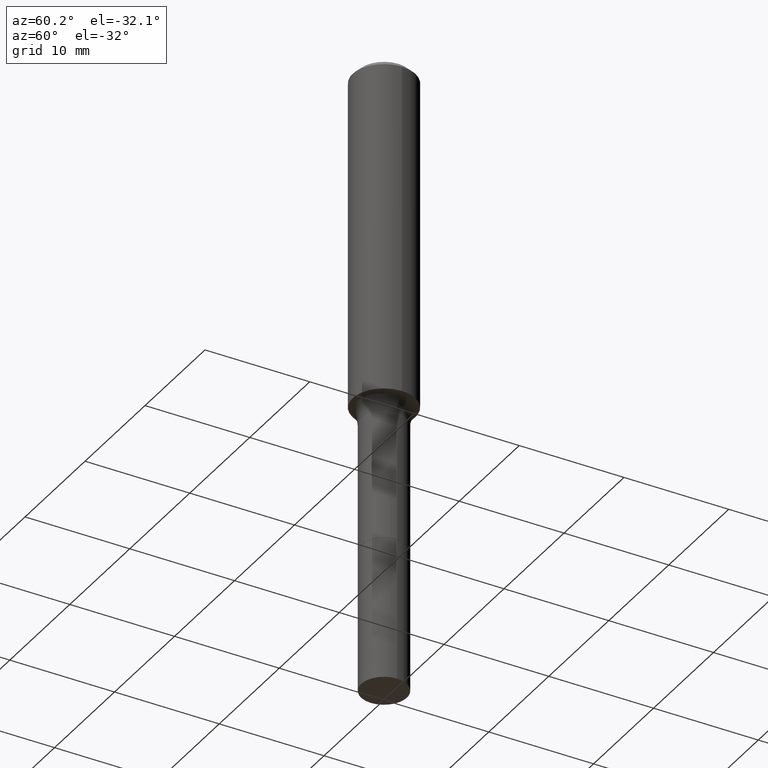
[diagram: clean part render]
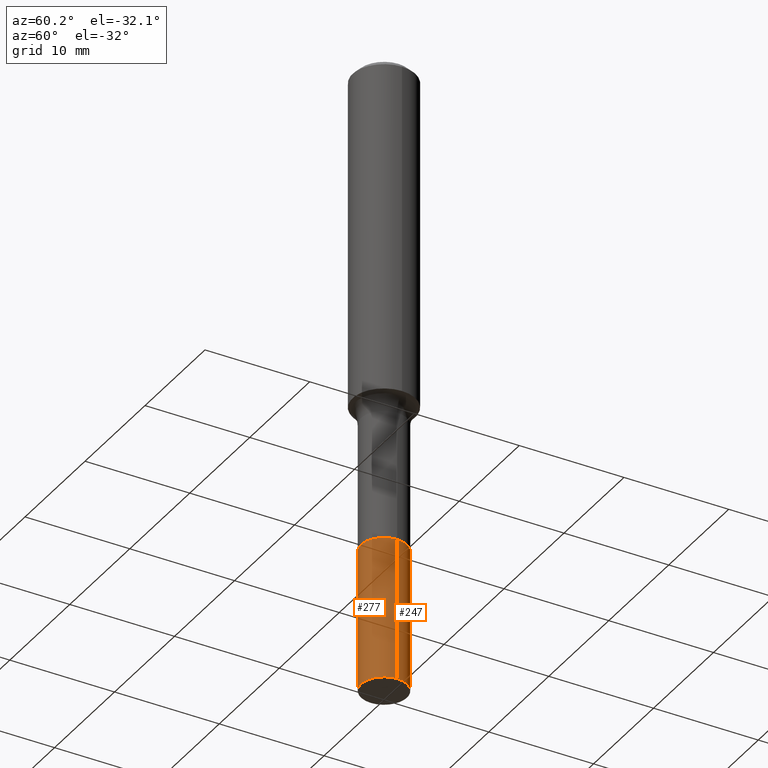
[diagram: same view with one multi-face feature highlighted, each face labeled with its STEP entity id]
A machine part, auxiliary view. The highlighted faces form ONE feature: a constant-radius fillet chain: 2 tangent blend faces with common blend radius 2.1831 mm. The faces share edges in the B-rep.
Their STEP definitions:
[1] entity #247 (Cylinder):
#5 = CIRCLE ( 'NONE', #360, 0.08594999999999998475 ) ;
#12 = CARTESIAN_POINT ( 'NONE',  ( -0.08595000000000005413, -5.765431739609545378E-15, -1.826200000000000045 ) ) ;
#65 = CARTESIAN_POINT ( 'NONE',  ( 0.08595000000000012352, -8.847762860762413853E-15, -2.362200000000000077 ) ) ;
#74 = AXIS2_PLACEMENT_3D ( 'NONE', #377, #173, #419 ) ;
#90 = CIRCLE ( 'NONE', #74, 0.08595000000000012352 ) ;
#104 = VECTOR ( 'NONE', #334, 39.37007874015748143 ) ;
#109 = EDGE_CURVE ( 'NONE', #309, #155, #489, .T. ) ;
#155 = VERTEX_POINT ( 'NONE', #321 ) ;
#173 = DIRECTION ( 'NONE',  ( -2.445468806185136597E-29, 3.491481338843145583E-15, 1.000000000000000000 ) ) ;
#177 = DIRECTION ( 'NONE',  ( -2.445468806185136597E-29, 3.491481338843145583E-15, 1.000000000000000000 ) ) ;
#205 = VECTOR ( 'NONE', #488, 39.37007874015748143 ) ;
#214 = EDGE_CURVE ( 'NONE', #309, #481, #90, .T. ) ;
#246 = CYLINDRICAL_SURFACE ( 'NONE', #423, 0.08595000000000005413 ) ;
#247 = ADVANCED_FACE ( 'NONE', ( #299 ), #246, .T. ) ;
#259 = LINE ( 'NONE', #12, #104 ) ;
#285 = EDGE_CURVE ( 'NONE', #481, #378, #259, .T. ) ;
#299 = FACE_OUTER_BOUND ( 'NONE', #503, .T. ) ;
#309 = VERTEX_POINT ( 'NONE', #65 ) ;
#321 = CARTESIAN_POINT ( 'NONE',  ( 0.08594999999999998475, -6.976328863142486296E-15, -1.826200000000000045 ) ) ;
#331 = ORIENTED_EDGE ( 'NONE', *, *, #285, .T. ) ;
#334 = DIRECTION ( 'NONE',  ( -2.445468806185136877E-29, 3.491481338843145188E-15, 1.000000000000000000 ) ) ;
#335 = DIRECTION ( 'NONE',  ( 1.000000000000000000, -6.982962677686268288E-15, 0.000000000000000000 ) ) ;
#343 = CARTESIAN_POINT ( 'NONE',  ( -0.08594999999999998475, -6.701148738419508368E-15, -1.826200000000000045 ) ) ;
#350 = ORIENTED_EDGE ( 'NONE', *, *, #379, .F. ) ;
#360 = AXIS2_PLACEMENT_3D ( 'NONE', #510, #472, #387 ) ;
#364 = CARTESIAN_POINT ( 'NONE',  ( 0.08595000000000005413, -6.976328863142487085E-15, -1.826200000000000045 ) ) ;
#377 = CARTESIAN_POINT ( 'NONE',  ( 5.776686413970529753E-29, -8.247577218615279626E-15, -2.362200000000000077 ) ) ;
#378 = VERTEX_POINT ( 'NONE', #343 ) ;
#379 = EDGE_CURVE ( 'NONE', #155, #378, #5, .T. ) ;
#387 = DIRECTION ( 'NONE',  ( 1.000000000000000000, -6.982962677686261977E-15, 0.000000000000000000 ) ) ;
#419 = DIRECTION ( 'NONE',  ( 1.000000000000000000, -6.982962677686262766E-15, 0.000000000000000000 ) ) ;
#423 = AXIS2_PLACEMENT_3D ( 'NONE', #457, #177, #335 ) ;
#427 = ORIENTED_EDGE ( 'NONE', *, *, #214, .T. ) ;
#450 = CARTESIAN_POINT ( 'NONE',  ( -0.08595000000000012352, -6.701148738419506790E-15, -2.362200000000000077 ) ) ;
#457 = CARTESIAN_POINT ( 'NONE',  ( 4.465915133855296004E-29, -6.376143220995352070E-15, -1.826200000000000045 ) ) ;
#472 = DIRECTION ( 'NONE',  ( -2.445468806185136597E-29, 3.491481338843145583E-15, 1.000000000000000000 ) ) ;
#475 = ORIENTED_EDGE ( 'NONE', *, *, #109, .F. ) ;
#481 = VERTEX_POINT ( 'NONE', #450 ) ;
#488 = DIRECTION ( 'NONE',  ( -2.445468806185136877E-29, 3.491481338843145188E-15, 1.000000000000000000 ) ) ;
#489 = LINE ( 'NONE', #364, #205 ) ;
#503 = EDGE_LOOP ( 'NONE', ( #427, #331, #350, #475 ) ) ;
#510 = CARTESIAN_POINT ( 'NONE',  ( 4.465915133855296004E-29, -6.376143220995352070E-15, -1.826200000000000045 ) ) ;
[2] entity #277 (Cylinder):
#9 = CARTESIAN_POINT ( 'NONE',  ( 4.465915133855296004E-29, -6.376143220995352070E-15, -1.826200000000000045 ) ) ;
#12 = CARTESIAN_POINT ( 'NONE',  ( -0.08595000000000005413, -5.765431739609545378E-15, -1.826200000000000045 ) ) ;
#24 = DIRECTION ( 'NONE',  ( -2.445468806185136597E-29, 3.491481338843145583E-15, 1.000000000000000000 ) ) ;
#34 = CIRCLE ( 'NONE', #480, 0.08594999999999998475 ) ;
#41 = EDGE_LOOP ( 'NONE', ( #393, #146, #76, #107 ) ) ;
#54 = FACE_OUTER_BOUND ( 'NONE', #41, .T. ) ;
#64 = CYLINDRICAL_SURFACE ( 'NONE', #424, 0.08595000000000005413 ) ;
#65 = CARTESIAN_POINT ( 'NONE',  ( 0.08595000000000012352, -8.847762860762413853E-15, -2.362200000000000077 ) ) ;
#76 = ORIENTED_EDGE ( 'NONE', *, *, #109, .T. ) ;
#104 = VECTOR ( 'NONE', #334, 39.37007874015748143 ) ;
#107 = ORIENTED_EDGE ( 'NONE', *, *, #314, .F. ) ;
#109 = EDGE_CURVE ( 'NONE', #309, #155, #489, .T. ) ;
#143 = DIRECTION ( 'NONE',  ( -2.445468806185136597E-29, 3.491481338843145583E-15, 1.000000000000000000 ) ) ;
#146 = ORIENTED_EDGE ( 'NONE', *, *, #353, .T. ) ;
#155 = VERTEX_POINT ( 'NONE', #321 ) ;
#161 = CIRCLE ( 'NONE', #463, 0.08595000000000012352 ) ;
#166 = DIRECTION ( 'NONE',  ( 1.000000000000000000, -6.982962677686261977E-15, 0.000000000000000000 ) ) ;
#205 = VECTOR ( 'NONE', #488, 39.37007874015748143 ) ;
#211 = CARTESIAN_POINT ( 'NONE',  ( 4.465915133855296004E-29, -6.376143220995352070E-15, -1.826200000000000045 ) ) ;
#259 = LINE ( 'NONE', #12, #104 ) ;
#277 = ADVANCED_FACE ( 'NONE', ( #54 ), #64, .T. ) ;
#285 = EDGE_CURVE ( 'NONE', #481, #378, #259, .T. ) ;
#304 = CARTESIAN_POINT ( 'NONE',  ( 5.776686413970529753E-29, -8.247577218615279626E-15, -2.362200000000000077 ) ) ;
#309 = VERTEX_POINT ( 'NONE', #65 ) ;
#314 = EDGE_CURVE ( 'NONE', #378, #155, #34, .T. ) ;
#321 = CARTESIAN_POINT ( 'NONE',  ( 0.08594999999999998475, -6.976328863142486296E-15, -1.826200000000000045 ) ) ;
#334 = DIRECTION ( 'NONE',  ( -2.445468806185136877E-29, 3.491481338843145188E-15, 1.000000000000000000 ) ) ;
#343 = CARTESIAN_POINT ( 'NONE',  ( -0.08594999999999998475, -6.701148738419508368E-15, -1.826200000000000045 ) ) ;
#353 = EDGE_CURVE ( 'NONE', #481, #309, #161, .T. ) ;
#364 = CARTESIAN_POINT ( 'NONE',  ( 0.08595000000000005413, -6.976328863142487085E-15, -1.826200000000000045 ) ) ;
#378 = VERTEX_POINT ( 'NONE', #343 ) ;
#393 = ORIENTED_EDGE ( 'NONE', *, *, #285, .F. ) ;
#409 = DIRECTION ( 'NONE',  ( -2.445468806185136597E-29, 3.491481338843145583E-15, 1.000000000000000000 ) ) ;
#424 = AXIS2_PLACEMENT_3D ( 'NONE', #211, #24, #502 ) ;
#450 = CARTESIAN_POINT ( 'NONE',  ( -0.08595000000000012352, -6.701148738419506790E-15, -2.362200000000000077 ) ) ;
#463 = AXIS2_PLACEMENT_3D ( 'NONE', #304, #143, #507 ) ;
#480 = AXIS2_PLACEMENT_3D ( 'NONE', #9, #409, #166 ) ;
#481 = VERTEX_POINT ( 'NONE', #450 ) ;
#488 = DIRECTION ( 'NONE',  ( -2.445468806185136877E-29, 3.491481338843145188E-15, 1.000000000000000000 ) ) ;
#489 = LINE ( 'NONE', #364, #205 ) ;
#502 = DIRECTION ( 'NONE',  ( 1.000000000000000000, -6.982962677686268288E-15, 0.000000000000000000 ) ) ;
#507 = DIRECTION ( 'NONE',  ( 1.000000000000000000, -6.982962677686262766E-15, 0.000000000000000000 ) ) ;